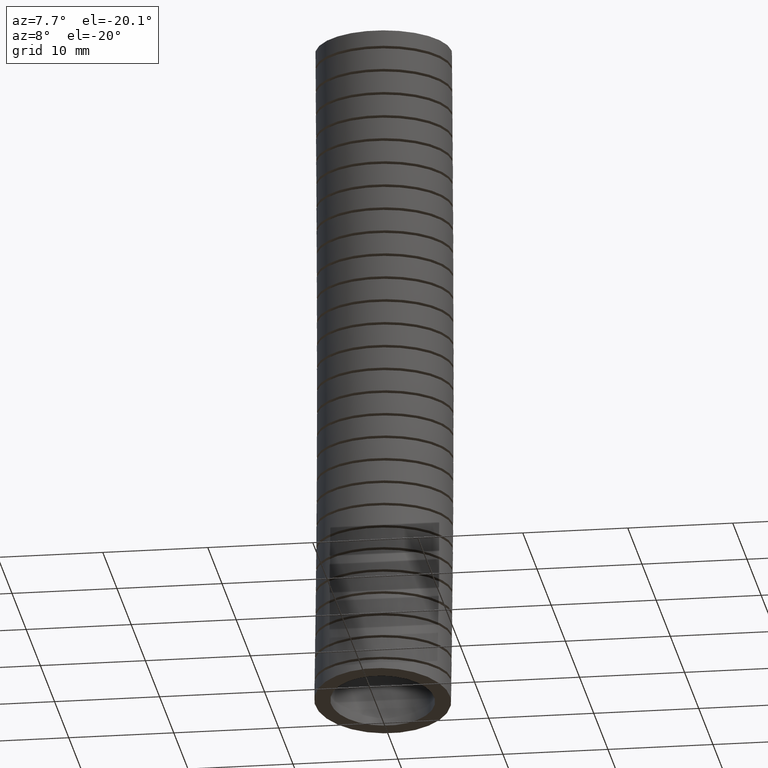
[diagram: clean part render]
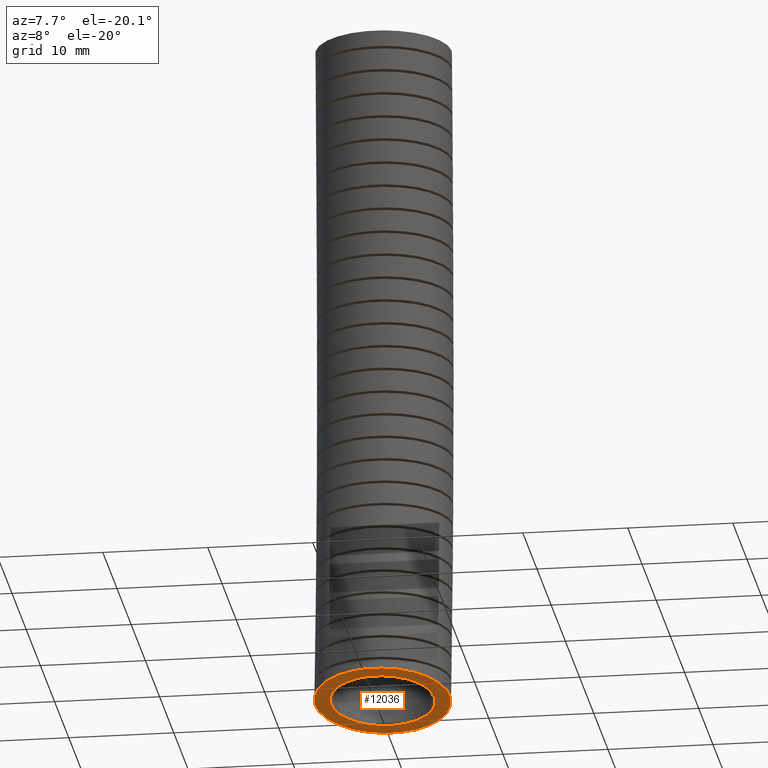
[diagram: same view with one face highlighted and labeled with its STEP entity id]
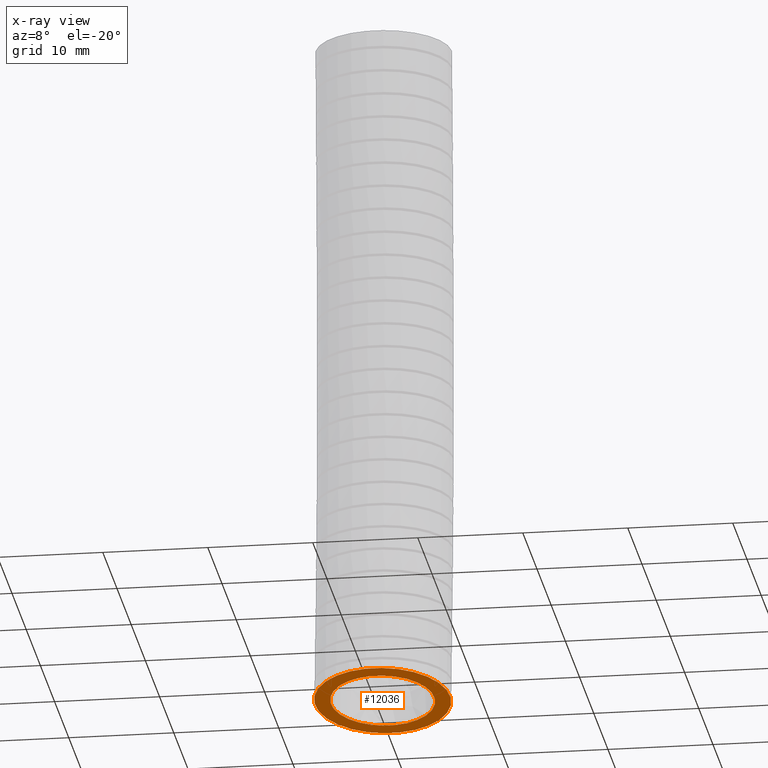
[diagram: x-ray of the same camera — body ghosted, the highlighted face saturated]
A machine part, auxiliary view. The second image highlights one B-rep face of the part: STEP entity #12036.
The next image is the same camera in x-ray: the body ghosted, the highlighted face saturated — about 0% of this face is hidden behind the body in this view.
In plain terms, the highlighted planar face has unit normal (0, 0.1456, 0.9894).
Its self-contained STEP definition (entity closure, byte-faithful):
#1376 = CARTESIAN_POINT ( 'NONE',  ( 0.1949999999999999800, -0.03000000000000002300, -2.570000000000000300 ) ) ;
#1377 = DIRECTION ( 'NONE',  ( 1.000000000000000000, 0.0000000000000000000, 0.0000000000000000000 ) ) ;
#1378 = DIRECTION ( 'NONE',  ( 0.0000000000000000000, 0.1455525941150913600, 0.9893505154121908800 ) ) ;
#1379 = AXIS2_PLACEMENT_3D ( 'NONE', #1387, #1378, #1377 ) ;
#1380 = CIRCLE ( 'NONE', #1379, 0.1949999999999999800 ) ;
#1387 = CARTESIAN_POINT ( 'NONE',  ( 0.0000000000000000000, -0.03000000000000002300, -2.570000000000000300 ) ) ;
#3804 = CARTESIAN_POINT ( 'NONE',  ( -0.2550000000000000600, -0.03000000000000007900, -2.570000000000000300 ) ) ;
#4629 = DIRECTION ( 'NONE',  ( 1.000000000000000000, 0.0000000000000000000, 0.0000000000000000000 ) ) ;
#4630 = DIRECTION ( 'NONE',  ( 0.0000000000000000000, 0.1455525941150913600, 0.9893505154121908800 ) ) ;
#4631 = CARTESIAN_POINT ( 'NONE',  ( 0.0000000000000000000, -0.03000000000000002300, -2.570000000000000300 ) ) ;
#4632 = AXIS2_PLACEMENT_3D ( 'NONE', #4631, #4630, #4629 ) ;
#4633 = CIRCLE ( 'NONE', #4632, 0.2550000000000000000 ) ;
#5694 = DIRECTION ( 'NONE',  ( 1.000000000000000000, 0.0000000000000000000, 0.0000000000000000000 ) ) ;
#5695 = DIRECTION ( 'NONE',  ( 0.0000000000000000000, 0.1455525941150913600, 0.9893505154121908800 ) ) ;
#5696 = CARTESIAN_POINT ( 'NONE',  ( 0.0000000000000000000, -0.03000000000000002300, -2.570000000000000300 ) ) ;
#5697 = AXIS2_PLACEMENT_3D ( 'NONE', #5696, #5695, #5694 ) ;
#5698 = CIRCLE ( 'NONE', #5697, 0.2550000000000000000 ) ;
#5895 = CARTESIAN_POINT ( 'NONE',  ( 0.2550000000000000000, -0.03000000000000002300, -2.570000000000000300 ) ) ;
#7709 = PLANE ( 'NONE',  #7774 ) ;
#7766 = DIRECTION ( 'NONE',  ( 1.000000000000000000, 0.0000000000000000000, 0.0000000000000000000 ) ) ;
#7767 = DIRECTION ( 'NONE',  ( 0.0000000000000000000, 0.1455525941150913600, 0.9893505154121908800 ) ) ;
#7768 = CARTESIAN_POINT ( 'NONE',  ( 0.0000000000000000000, -0.03000000000000002300, -2.570000000000000300 ) ) ;
#7769 = AXIS2_PLACEMENT_3D ( 'NONE', #7768, #7767, #7766 ) ;
#7770 = CIRCLE ( 'NONE', #7769, 0.1949999999999999800 ) ;
#7771 = DIRECTION ( 'NONE',  ( 1.000000000000000000, 0.0000000000000000000, 0.0000000000000000000 ) ) ;
#7772 = DIRECTION ( 'NONE',  ( 0.0000000000000000000, 0.1455525941150913600, 0.9893505154121908800 ) ) ;
#7773 = CARTESIAN_POINT ( 'NONE',  ( 0.0000000000000000000, -0.03000000000000002300, -2.570000000000000300 ) ) ;
#7774 = AXIS2_PLACEMENT_3D ( 'NONE', #7773, #7772, #7771 ) ;
#7812 = FACE_OUTER_BOUND ( 'NONE', #12139, .T. ) ;
#7813 = FACE_BOUND ( 'NONE', #12038, .T. ) ;
#11451 = VERTEX_POINT ( 'NONE', #14348 ) ;
#11573 = EDGE_CURVE ( 'NONE', #11574, #11451, #1380, .T. ) ;
#11574 = VERTEX_POINT ( 'NONE', #1376 ) ;
#11778 = VERTEX_POINT ( 'NONE', #3804 ) ;
#11834 = EDGE_CURVE ( 'NONE', #11778, #11914, #4633, .T. ) ;
#11893 = EDGE_CURVE ( 'NONE', #11914, #11778, #5698, .T. ) ;
#11914 = VERTEX_POINT ( 'NONE', #5895 ) ;
#12036 = ADVANCED_FACE ( 'NONE', ( #7813, #7812 ), #7709, .F. ) ;
#12037 = EDGE_CURVE ( 'NONE', #11451, #11574, #7770, .T. ) ;
#12038 = EDGE_LOOP ( 'NONE', ( #12207, #12143 ) ) ;
#12139 = EDGE_LOOP ( 'NONE', ( #12187, #12188 ) ) ;
#12143 = ORIENTED_EDGE ( 'NONE', *, *, #12037, .T. ) ;
#12187 = ORIENTED_EDGE ( 'NONE', *, *, #11893, .F. ) ;
#12188 = ORIENTED_EDGE ( 'NONE', *, *, #11834, .F. ) ;
#12207 = ORIENTED_EDGE ( 'NONE', *, *, #11573, .T. ) ;
#14348 = CARTESIAN_POINT ( 'NONE',  ( -0.1950000000000000100, -0.03000000000000008200, -2.570000000000000300 ) ) ;